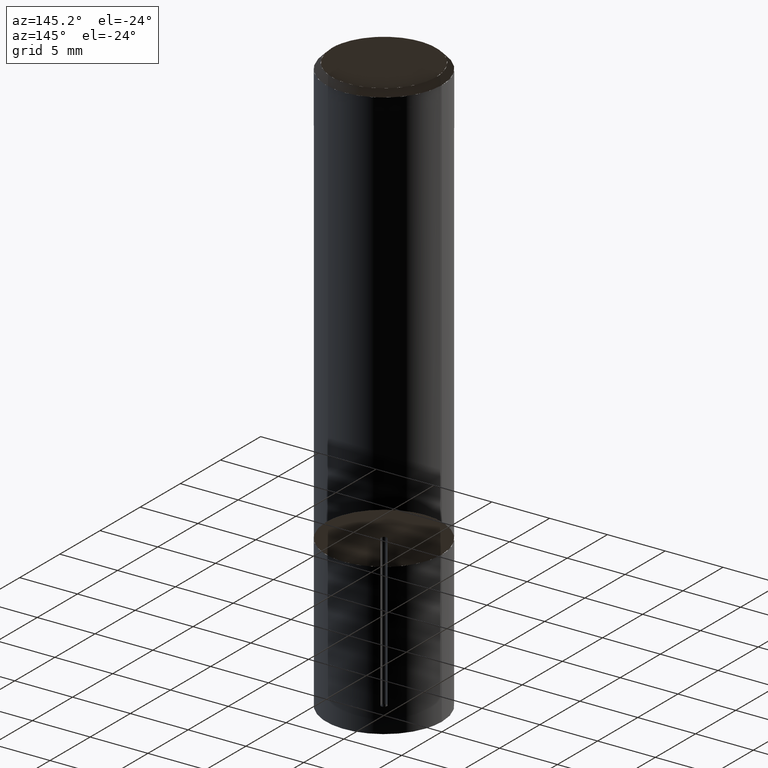
[diagram: clean part render]
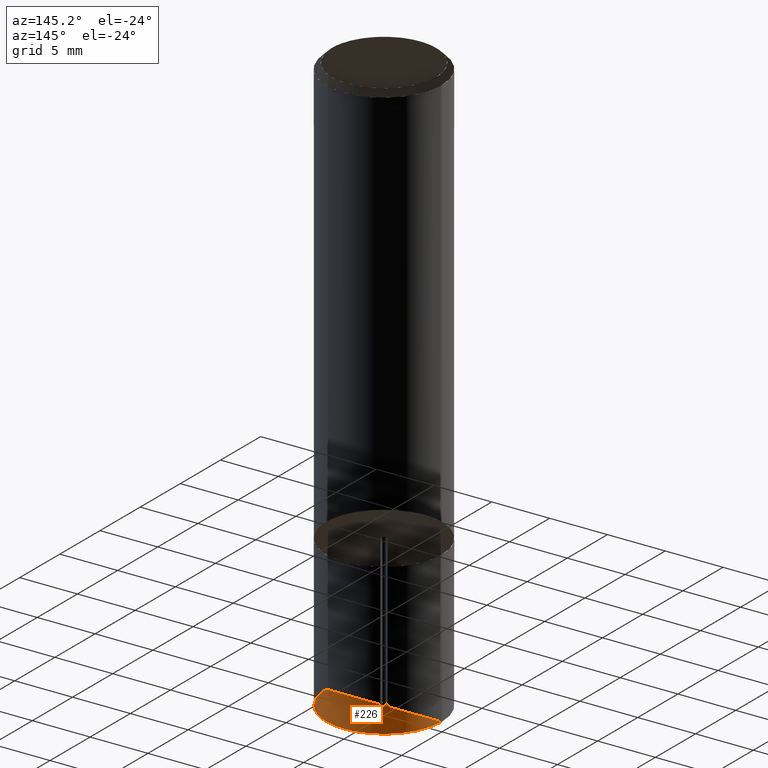
[diagram: same view with one face highlighted and labeled with its STEP entity id]
A machine part, auxiliary view. The second image highlights one B-rep face of the part: STEP entity #226.
In plain terms, the highlighted face is a freeform B-spline surface patch.
Its self-contained STEP definition (entity closure, byte-faithful):
#71=CARTESIAN_POINT('',(0.25,0.0,-13.0));
#75=CARTESIAN_POINT('',(-0.25,0.0,-13.0));
#76=CARTESIAN_POINT('',(5.0,0.0,-13.0));
#80=CARTESIAN_POINT('',(-5.0,0.0,-13.0));
#91=CARTESIAN_POINT('',(-0.25,-0.25,-13.0));
#92=CARTESIAN_POINT('',(0.0,-0.25,-13.0));
#93=CARTESIAN_POINT('',(0.25,-0.25,-13.0));
#94=CARTESIAN_POINT('',(-5.0,-5.0,-13.0));
#95=CARTESIAN_POINT('',(0.0,-5.0,-13.0));
#96=CARTESIAN_POINT('',(5.0,-5.0,-13.0));
#207=(
BOUNDED_SURFACE()
B_SPLINE_SURFACE(1,2,(
(#75,#91,#92,#93,#71),
(#80,#94,#95,#96,#76)
), .UNSPECIFIED.,.F.,.F.,.F.)
B_SPLINE_SURFACE_WITH_KNOTS((2,2),(3,2,3),(
0.0,1.0),(
0.0,0.5,1.0), .UNSPECIFIED.)
GEOMETRIC_REPRESENTATION_ITEM()
RATIONAL_B_SPLINE_SURFACE(((1.0,0.707106781187,1.0,0.707106781187,1.0),
(1.0,0.707106781187,1.0,0.707106781187,1.0)
))
REPRESENTATION_ITEM('')
SURFACE()
);
#208=(
BOUNDED_CURVE()
B_SPLINE_CURVE(2,(#71,#93,#92,#91,#75),.UNSPECIFIED.,.F.,.F.)
B_SPLINE_CURVE_WITH_KNOTS((3,2,3),
(0.0,0.5,1.0),.UNSPECIFIED.)
CURVE()
GEOMETRIC_REPRESENTATION_ITEM()
RATIONAL_B_SPLINE_CURVE((1.0,0.707106781187,1.0,0.707106781187,1.0))
REPRESENTATION_ITEM('')
);
#209=(
BOUNDED_CURVE()
B_SPLINE_CURVE(1,(#75,#80),.UNSPECIFIED.,.F.,.F.)
B_SPLINE_CURVE_WITH_KNOTS((2,2),
(0.0,1.0),.UNSPECIFIED.)
CURVE()
GEOMETRIC_REPRESENTATION_ITEM()
RATIONAL_B_SPLINE_CURVE((1.0,1.0))
REPRESENTATION_ITEM('')
);
#210=(
BOUNDED_CURVE()
B_SPLINE_CURVE(2,(#80,#94,#95,#96,#76),.UNSPECIFIED.,.F.,.F.)
B_SPLINE_CURVE_WITH_KNOTS((3,2,3),
(0.0,0.5,1.0),.UNSPECIFIED.)
CURVE()
GEOMETRIC_REPRESENTATION_ITEM()
RATIONAL_B_SPLINE_CURVE((1.0,0.707106781187,1.0,0.707106781187,1.0))
REPRESENTATION_ITEM('')
);
#211=(
BOUNDED_CURVE()
B_SPLINE_CURVE(1,(#76,#71),.UNSPECIFIED.,.F.,.F.)
B_SPLINE_CURVE_WITH_KNOTS((2,2),
(0.0,1.0),.UNSPECIFIED.)
CURVE()
GEOMETRIC_REPRESENTATION_ITEM()
RATIONAL_B_SPLINE_CURVE((1.0,1.0))
REPRESENTATION_ITEM('')
);
#212=VERTEX_POINT('',#71);
#213=VERTEX_POINT('',#75);
#214=VERTEX_POINT('',#76);
#215=VERTEX_POINT('',#80);
#216=EDGE_CURVE('',#212,#213,#208,.T.);
#217=EDGE_CURVE('',#213,#215,#209,.T.);
#218=EDGE_CURVE('',#215,#214,#210,.T.);
#219=EDGE_CURVE('',#214,#212,#211,.T.);
#220=ORIENTED_EDGE('',*,*,#216,.T.);
#221=ORIENTED_EDGE('',*,*,#217,.T.);
#222=ORIENTED_EDGE('',*,*,#218,.T.);
#223=ORIENTED_EDGE('',*,*,#219,.T.);
#224=EDGE_LOOP('',(#220,#221,#222,#223));
#225=FACE_OUTER_BOUND('',#224,.T.);
#226=ADVANCED_FACE('',(#225),#207,.T.);